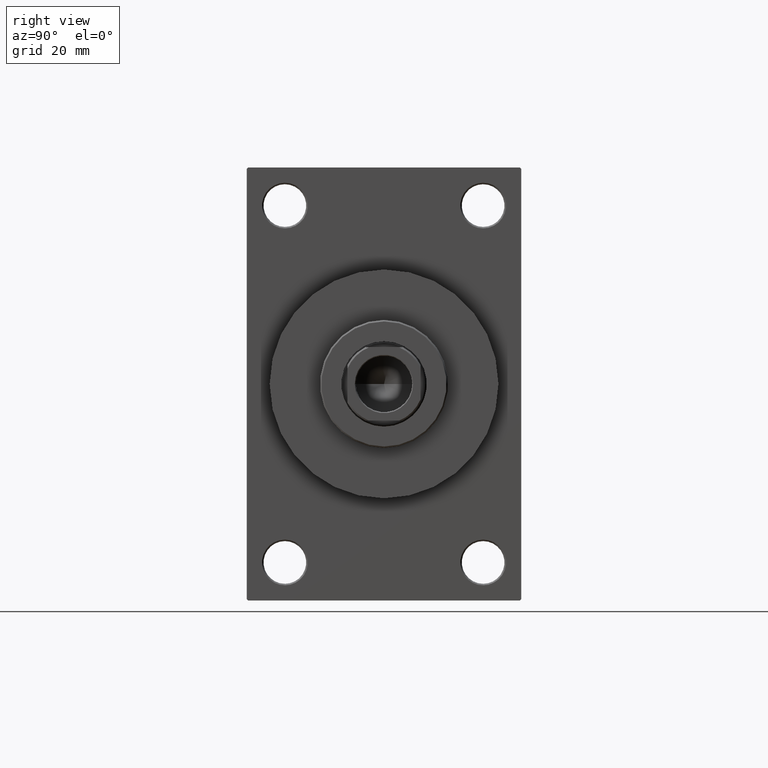
[diagram: clean part render]
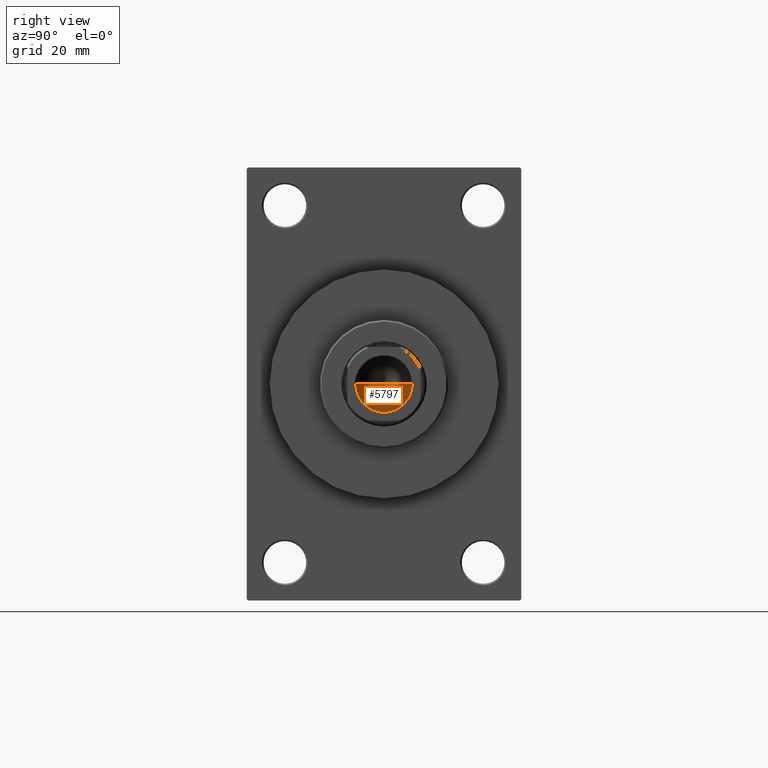
[diagram: same view with one face highlighted and labeled with its STEP entity id]
A machine part, right view. The second image highlights one B-rep face of the part: STEP entity #5797.
In plain terms, the highlighted conical surface has half-angle 59 deg.
Its self-contained STEP definition (entity closure, byte-faithful):
#700 = VERTEX_POINT ( 'NONE', #7649 ) ;
#735 = VERTEX_POINT ( 'NONE', #16475 ) ;
#3030 = EDGE_CURVE ( 'NONE', #10747, #700, #18960, .T. ) ;
#5797 = ADVANCED_FACE ( 'NONE', ( #12762 ), #25583, .F. ) ;
#6176 = ORIENTED_EDGE ( 'NONE', *, *, #3030, .F. ) ;
#7649 = CARTESIAN_POINT ( 'NONE',  ( -9.249999999999992895, 1.132798289211300712E-15, 77.99999999999998579 ) ) ;
#7874 = EDGE_CURVE ( 'NONE', #10747, #735, #8764, .T. ) ;
#8764 = LINE ( 'NONE', #12121, #43980 ) ;
#9906 = ORIENTED_EDGE ( 'NONE', *, *, #7874, .T. ) ;
#10000 = AXIS2_PLACEMENT_3D ( 'NONE', #22208, #10976, #36531 ) ;
#10747 = VERTEX_POINT ( 'NONE', #37200 ) ;
#10921 = EDGE_LOOP ( 'NONE', ( #6176, #9906, #44590 ) ) ;
#10976 = DIRECTION ( 'NONE',  ( -0.000000000000000000, -0.000000000000000000, 1.000000000000000000 ) ) ;
#11319 = DIRECTION ( 'NONE',  ( -0.8571673007021117785, 1.049727191138617956E-16, 0.5150380749100550437 ) ) ;
#12121 = CARTESIAN_POINT ( 'NONE',  ( 9.249999999999992895, 0.000000000000000000, 77.99999999999998579 ) ) ;
#12762 = FACE_OUTER_BOUND ( 'NONE', #10921, .T. ) ;
#12991 = CARTESIAN_POINT ( 'NONE',  ( 0.000000000000000000, 0.000000000000000000, 77.99999999999998579 ) ) ;
#15614 = VECTOR ( 'NONE', #11319, 1000.000000000000000 ) ;
#16475 = CARTESIAN_POINT ( 'NONE',  ( 9.249999999999992895, 0.000000000000000000, 77.99999999999998579 ) ) ;
#18960 = LINE ( 'NONE', #41164, #15614 ) ;
#22208 = CARTESIAN_POINT ( 'NONE',  ( 0.000000000000000000, 0.000000000000000000, 77.99999999999998579 ) ) ;
#25583 = CONICAL_SURFACE ( 'NONE', #43912, 9.249999999999992895, 1.029744258676653423 ) ;
#26683 = DIRECTION ( 'NONE',  ( 0.8571673007021117785, 0.000000000000000000, 0.5150380749100550437 ) ) ;
#27558 = DIRECTION ( 'NONE',  ( 1.000000000000000000, 0.000000000000000000, 0.000000000000000000 ) ) ;
#34417 = CIRCLE ( 'NONE', #10000, 9.249999999999992895 ) ;
#36531 = DIRECTION ( 'NONE',  ( 1.000000000000000000, 0.000000000000000000, 0.000000000000000000 ) ) ;
#37200 = CARTESIAN_POINT ( 'NONE',  ( -9.769621978240258809E-15, 0.000000000000000000, 72.44203927399505005 ) ) ;
#37950 = EDGE_CURVE ( 'NONE', #735, #700, #34417, .T. ) ;
#41164 = CARTESIAN_POINT ( 'NONE',  ( -9.249999999999992895, 1.132798289211300712E-15, 77.99999999999998579 ) ) ;
#41195 = DIRECTION ( 'NONE',  ( -0.000000000000000000, -0.000000000000000000, 1.000000000000000000 ) ) ;
#43912 = AXIS2_PLACEMENT_3D ( 'NONE', #12991, #41195, #27558 ) ;
#43980 = VECTOR ( 'NONE', #26683, 1000.000000000000000 ) ;
#44590 = ORIENTED_EDGE ( 'NONE', *, *, #37950, .T. ) ;